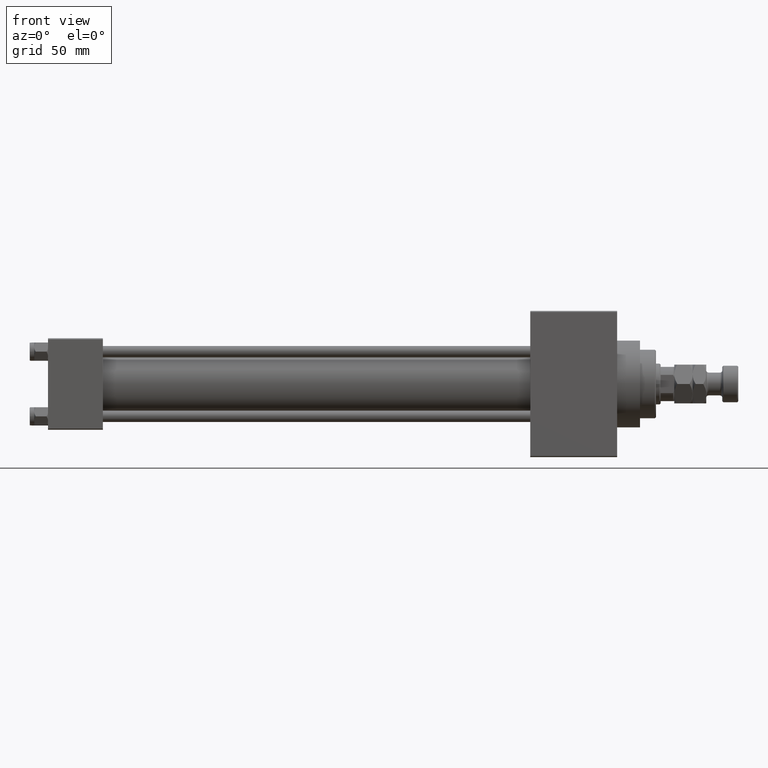
[diagram: clean part render]
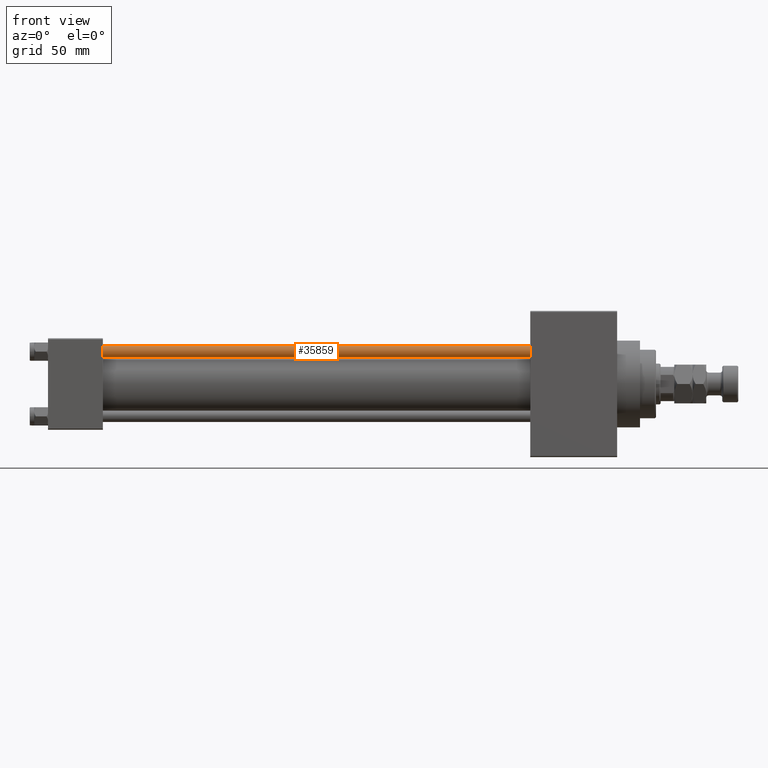
[diagram: same view with one face highlighted and labeled with its STEP entity id]
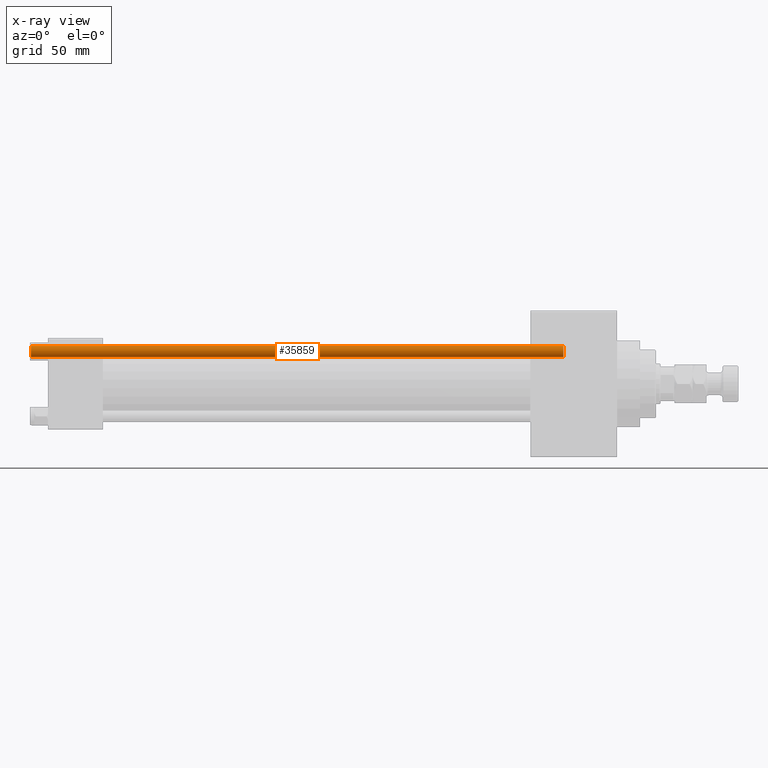
[diagram: x-ray of the same camera — body ghosted, the highlighted face saturated]
A machine part, front view. The second image highlights one B-rep face of the part: STEP entity #35859.
The next image is the same camera in x-ray: the body ghosted, the highlighted face saturated — about 0% of this face is hidden behind the body in this view.
In plain terms, the highlighted cylindrical surface (edge-blend (fillet) strip) has radius 2.5 mm, axis along (1, 0, 0).
Its self-contained STEP definition (entity closure, byte-faithful):
#811 = CARTESIAN_POINT ( 'NONE',  ( 2.500000000000000000, 3.061616997868383141E-16, 233.5000000000000284 ) ) ;
#955 = LINE ( 'NONE', #32232, #44775 ) ;
#1068 = EDGE_LOOP ( 'NONE', ( #5940, #36642, #40227, #5425 ) ) ;
#2318 = CYLINDRICAL_SURFACE ( 'NONE', #42256, 2.500000000000000000 ) ;
#2384 = CARTESIAN_POINT ( 'NONE',  ( 0.000000000000000000, 0.000000000000000000, 233.5000000000000284 ) ) ;
#5425 = ORIENTED_EDGE ( 'NONE', *, *, #37686, .F. ) ;
#5931 = VERTEX_POINT ( 'NONE', #18179 ) ;
#5940 = ORIENTED_EDGE ( 'NONE', *, *, #36765, .T. ) ;
#6969 = VECTOR ( 'NONE', #48574, 1000.000000000000000 ) ;
#7788 = VERTEX_POINT ( 'NONE', #11655 ) ;
#10135 = CIRCLE ( 'NONE', #30617, 2.500000000000000000 ) ;
#10585 = VERTEX_POINT ( 'NONE', #811 ) ;
#10771 = DIRECTION ( 'NONE',  ( -0.000000000000000000, -0.000000000000000000, 1.000000000000000000 ) ) ;
#11655 = CARTESIAN_POINT ( 'NONE',  ( -2.500000000000000000, 0.000000000000000000, 233.5000000000000284 ) ) ;
#13610 = DIRECTION ( 'NONE',  ( -0.000000000000000000, -0.000000000000000000, -1.000000000000000000 ) ) ;
#17719 = CIRCLE ( 'NONE', #23441, 2.500000000000000000 ) ;
#18179 = CARTESIAN_POINT ( 'NONE',  ( 2.500000000000000000, 3.061616997868383141E-16, 0.5000000000000281997 ) ) ;
#18610 = VERTEX_POINT ( 'NONE', #28532 ) ;
#18703 = DIRECTION ( 'NONE',  ( 1.000000000000000000, 0.000000000000000000, 0.000000000000000000 ) ) ;
#23441 = AXIS2_PLACEMENT_3D ( 'NONE', #2384, #29309, #45474 ) ;
#27427 = EDGE_CURVE ( 'NONE', #5931, #18610, #10135, .T. ) ;
#28532 = CARTESIAN_POINT ( 'NONE',  ( -2.500000000000000000, 0.000000000000000000, 0.5000000000000281997 ) ) ;
#29243 = DIRECTION ( 'NONE',  ( -1.000000000000000000, 0.000000000000000000, 0.000000000000000000 ) ) ;
#29309 = DIRECTION ( 'NONE',  ( 0.000000000000000000, 0.000000000000000000, -1.000000000000000000 ) ) ;
#30617 = AXIS2_PLACEMENT_3D ( 'NONE', #42567, #10771, #18703 ) ;
#32232 = CARTESIAN_POINT ( 'NONE',  ( -2.500000000000000000, 0.000000000000000000, 234.0000000000000000 ) ) ;
#33686 = EDGE_CURVE ( 'NONE', #10585, #5931, #36774, .T. ) ;
#35859 = ADVANCED_FACE ( 'NONE', ( #49742 ), #2318, .T. ) ;
#36003 = CARTESIAN_POINT ( 'NONE',  ( 2.500000000000000000, 3.061616997868383141E-16, 234.0000000000000000 ) ) ;
#36642 = ORIENTED_EDGE ( 'NONE', *, *, #33686, .T. ) ;
#36765 = EDGE_CURVE ( 'NONE', #7788, #10585, #17719, .T. ) ;
#36774 = LINE ( 'NONE', #36003, #6969 ) ;
#36860 = DIRECTION ( 'NONE',  ( -0.000000000000000000, -0.000000000000000000, -1.000000000000000000 ) ) ;
#37686 = EDGE_CURVE ( 'NONE', #7788, #18610, #955, .T. ) ;
#37954 = CARTESIAN_POINT ( 'NONE',  ( 0.000000000000000000, 0.000000000000000000, 234.0000000000000000 ) ) ;
#40227 = ORIENTED_EDGE ( 'NONE', *, *, #27427, .T. ) ;
#42256 = AXIS2_PLACEMENT_3D ( 'NONE', #37954, #13610, #29243 ) ;
#42567 = CARTESIAN_POINT ( 'NONE',  ( 0.000000000000000000, 0.000000000000000000, 0.5000000000000281997 ) ) ;
#44775 = VECTOR ( 'NONE', #36860, 1000.000000000000000 ) ;
#45474 = DIRECTION ( 'NONE',  ( 1.000000000000000000, 0.000000000000000000, 0.000000000000000000 ) ) ;
#48574 = DIRECTION ( 'NONE',  ( -0.000000000000000000, -0.000000000000000000, -1.000000000000000000 ) ) ;
#49742 = FACE_OUTER_BOUND ( 'NONE', #1068, .T. ) ;